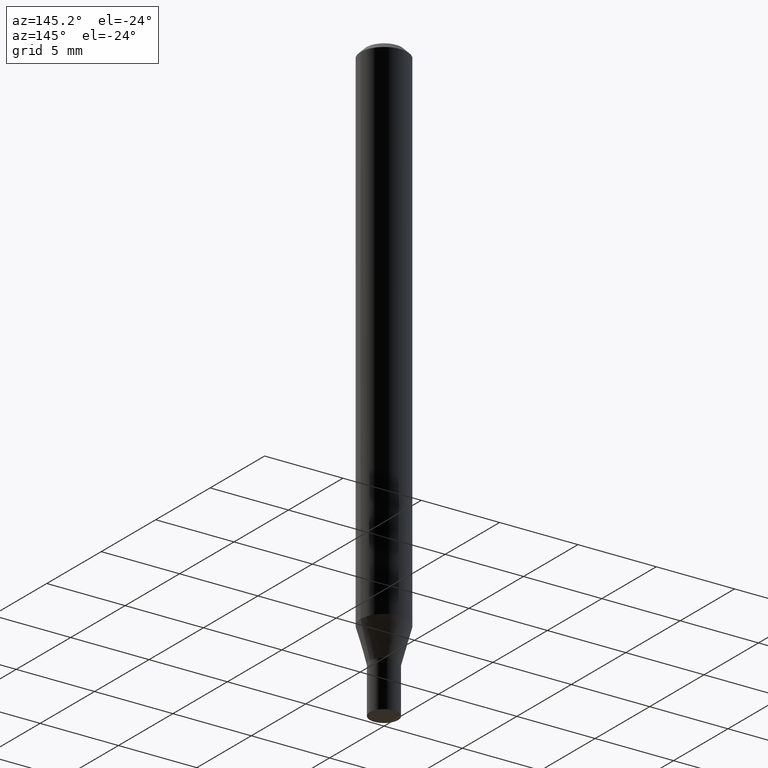
[diagram: clean part render]
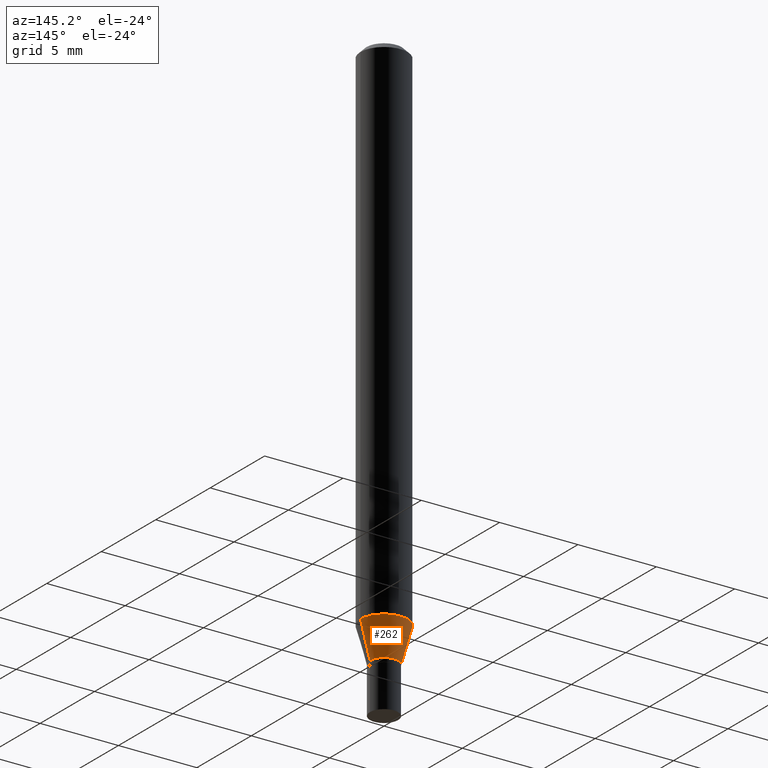
[diagram: same view with one face highlighted and labeled with its STEP entity id]
A machine part, auxiliary view. The second image highlights one B-rep face of the part: STEP entity #262.
In plain terms, the highlighted conical surface has half-angle 15 deg.
Its self-contained STEP definition (entity closure, byte-faithful):
#2 = CARTESIAN_POINT ( 'NONE',  ( -0.05904999999999999832, -4.104070139385231647E-15, -1.295623600941375297 ) ) ;
#16 = DIRECTION ( 'NONE',  ( 1.000000000000000000, -6.982962677686273021E-15, 0.000000000000000000 ) ) ;
#29 = DIRECTION ( 'NONE',  ( -2.445468806185136597E-29, 3.491481338843145583E-15, 1.000000000000000000 ) ) ;
#35 = CARTESIAN_POINT ( 'NONE',  ( 3.383795187118373530E-29, -4.831162728557261458E-15, -1.383700000000000152 ) ) ;
#61 = DIRECTION ( 'NONE',  ( 1.000000000000000000, -6.982962677686270655E-15, 0.000000000000000000 ) ) ;
#69 = CARTESIAN_POINT ( 'NONE',  ( 0.03545000000000019663, -5.078708755481240920E-15, -1.383700000000000152 ) ) ;
#89 = CIRCLE ( 'NONE', #103, 0.03545000000000019663 ) ;
#103 = AXIS2_PLACEMENT_3D ( 'NONE', #428, #385, #252 ) ;
#107 = CARTESIAN_POINT ( 'NONE',  ( -0.03545000000000019663, -4.341672734057767677E-15, -1.383700000000000152 ) ) ;
#108 = EDGE_CURVE ( 'NONE', #384, #323, #192, .T. ) ;
#168 = EDGE_CURVE ( 'NONE', #447, #323, #185, .T. ) ;
#172 = VECTOR ( 'NONE', #290, 39.37007874015748143 ) ;
#185 = CIRCLE ( 'NONE', #274, 0.05904999999999999832 ) ;
#189 = DIRECTION ( 'NONE',  ( -0.2588190451025209615, 5.211531920934547097E-15, 0.9659258262890682012 ) ) ;
#192 = LINE ( 'NONE', #221, #351 ) ;
#209 = ORIENTED_EDGE ( 'NONE', *, *, #108, .T. ) ;
#214 = AXIS2_PLACEMENT_3D ( 'NONE', #35, #29, #61 ) ;
#221 = CARTESIAN_POINT ( 'NONE',  ( -0.03545000000000019663, -4.579275328730304496E-15, -1.383700000000000152 ) ) ;
#250 = ORIENTED_EDGE ( 'NONE', *, *, #449, .F. ) ;
#252 = DIRECTION ( 'NONE',  ( 1.000000000000000000, -6.982962677686270655E-15, 0.000000000000000000 ) ) ;
#255 = ORIENTED_EDGE ( 'NONE', *, *, #168, .F. ) ;
#262 = ADVANCED_FACE ( 'NONE', ( #345 ), #288, .T. ) ;
#272 = CARTESIAN_POINT ( 'NONE',  ( 3.168407100659392834E-29, -4.523645624851571140E-15, -1.295623600941375297 ) ) ;
#274 = AXIS2_PLACEMENT_3D ( 'NONE', #272, #275, #16 ) ;
#275 = DIRECTION ( 'NONE',  ( -2.445468806185136597E-29, 3.491481338843145583E-15, 1.000000000000000000 ) ) ;
#279 = EDGE_LOOP ( 'NONE', ( #430, #209, #255, #250 ) ) ;
#285 = CARTESIAN_POINT ( 'NONE',  ( 0.05904999999999999832, -4.935989570968945271E-15, -1.295623600941375297 ) ) ;
#288 = CONICAL_SURFACE ( 'NONE', #214, 0.03545000000000019663, 0.2617993877991496299 ) ;
#290 = DIRECTION ( 'NONE',  ( 0.2588190451025209615, 1.565188264969624926E-15, 0.9659258262890682012 ) ) ;
#323 = VERTEX_POINT ( 'NONE', #2 ) ;
#345 = FACE_OUTER_BOUND ( 'NONE', #279, .T. ) ;
#351 = VECTOR ( 'NONE', #189, 39.37007874015748143 ) ;
#381 = EDGE_CURVE ( 'NONE', #454, #384, #89, .T. ) ;
#384 = VERTEX_POINT ( 'NONE', #107 ) ;
#385 = DIRECTION ( 'NONE',  ( -2.445468806185136597E-29, 3.491481338843145583E-15, 1.000000000000000000 ) ) ;
#395 = CARTESIAN_POINT ( 'NONE',  ( 0.03545000000000019663, -5.078708755481240920E-15, -1.383700000000000152 ) ) ;
#428 = CARTESIAN_POINT ( 'NONE',  ( 3.383795187118373530E-29, -4.831162728557261458E-15, -1.383700000000000152 ) ) ;
#430 = ORIENTED_EDGE ( 'NONE', *, *, #381, .T. ) ;
#447 = VERTEX_POINT ( 'NONE', #285 ) ;
#449 = EDGE_CURVE ( 'NONE', #454, #447, #462, .T. ) ;
#454 = VERTEX_POINT ( 'NONE', #395 ) ;
#462 = LINE ( 'NONE', #69, #172 ) ;